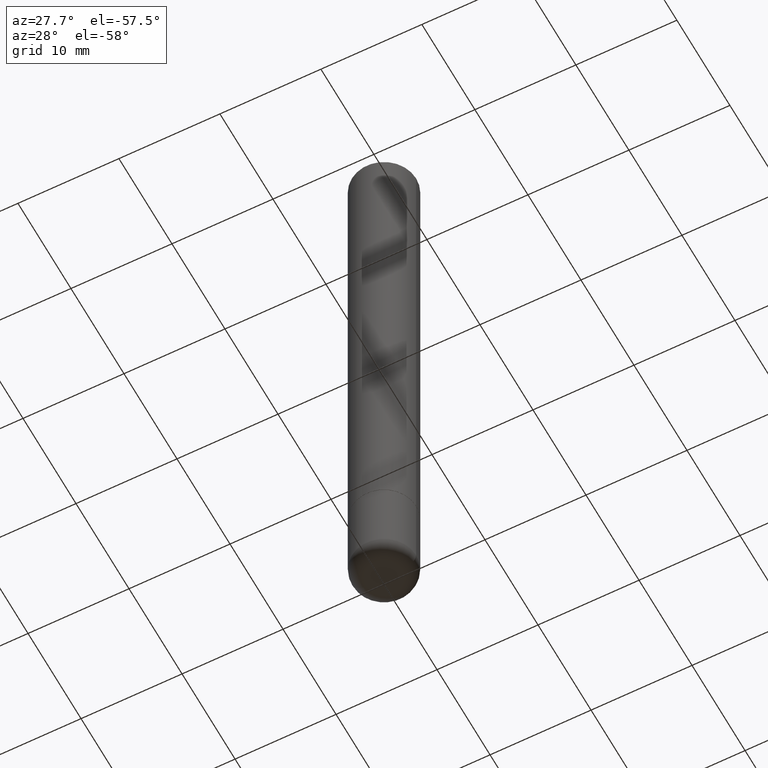
[diagram: clean part render]
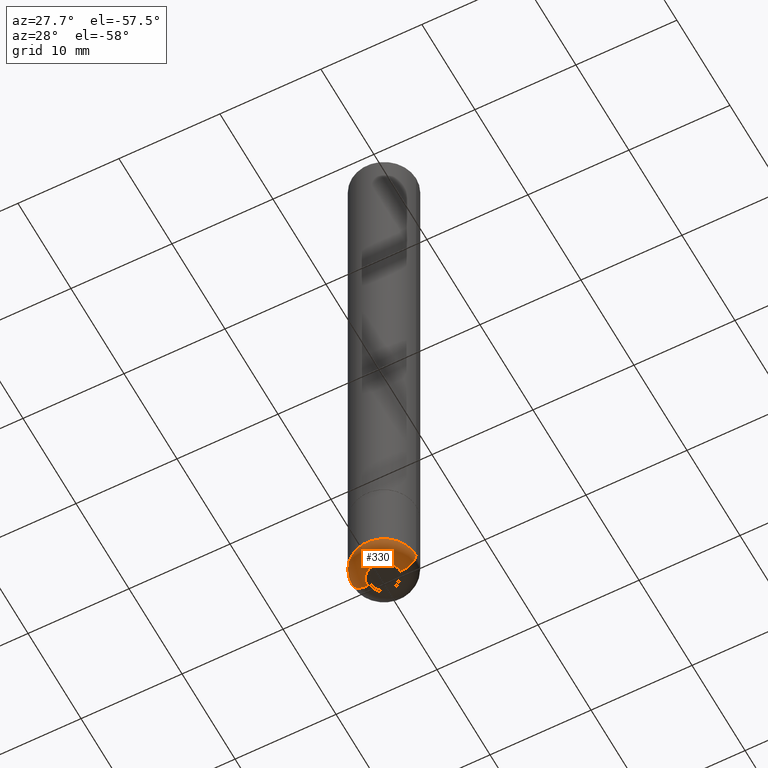
[diagram: same view with one face highlighted and labeled with its STEP entity id]
A machine part, auxiliary view. The second image highlights one B-rep face of the part: STEP entity #330.
In plain terms, the highlighted toroidal blend (fillet) surface has major radius 1.651 mm and minor (blend) radius 1.524 mm.
Its self-contained STEP definition (entity closure, byte-faithful):
#4 = AXIS2_PLACEMENT_3D ( 'NONE', #250, #470, #98 ) ;
#19 = EDGE_CURVE ( 'NONE', #147, #381, #78, .T. ) ;
#29 = ORIENTED_EDGE ( 'NONE', *, *, #224, .T. ) ;
#41 = CARTESIAN_POINT ( 'NONE',  ( -0.06447640787009809027, -7.950807469239815743E-15, -2.500000000000000000 ) ) ;
#58 = DIRECTION ( 'NONE',  ( -6.982962677686266711E-15, -1.000000000000000000, 3.491481338843145583E-15 ) ) ;
#62 = CARTESIAN_POINT ( 'NONE',  ( 0.06447640787009809027, -9.178939696856037528E-15, -2.500000000000000000 ) ) ;
#78 = CIRCLE ( 'NONE', #322, 0.05999999999999985206 ) ;
#92 = AXIS2_PLACEMENT_3D ( 'NONE', #287, #435, #106 ) ;
#98 = DIRECTION ( 'NONE',  ( 1.000000000000000000, -6.982962677686280121E-15, 0.000000000000000000 ) ) ;
#106 = DIRECTION ( 'NONE',  ( 1.000000000000000000, -6.982962677686268288E-15, 4.883557194083113462E-29 ) ) ;
#109 = VERTEX_POINT ( 'NONE', #288 ) ;
#122 = EDGE_CURVE ( 'NONE', #147, #346, #229, .T. ) ;
#136 = EDGE_LOOP ( 'NONE', ( #447, #383, #29, #285 ) ) ;
#137 = CARTESIAN_POINT ( 'NONE',  ( -0.1250000000000000278, -7.081131724556681111E-15, -2.440002284616149986 ) ) ;
#147 = VERTEX_POINT ( 'NONE', #41 ) ;
#153 = DIRECTION ( 'NONE',  ( 7.105427357601001859E-15, 1.000000000000000000, -3.491481338843145583E-15 ) ) ;
#168 = AXIS2_PLACEMENT_3D ( 'NONE', #200, #348, #319 ) ;
#172 = FACE_OUTER_BOUND ( 'NONE', #136, .T. ) ;
#183 = CIRCLE ( 'NONE', #221, 0.05999999999999985206 ) ;
#200 = CARTESIAN_POINT ( 'NONE',  ( 5.966949474049262823E-29, -8.519222443471929064E-15, -2.440002284616149986 ) ) ;
#203 = DIRECTION ( 'NONE',  ( 1.000000000000000000, -6.982962677686253300E-15, 0.000000000000000000 ) ) ;
#221 = AXIS2_PLACEMENT_3D ( 'NONE', #274, #58, #203 ) ;
#224 = EDGE_CURVE ( 'NONE', #346, #109, #183, .T. ) ;
#229 = CIRCLE ( 'NONE', #4, 0.06447640787009809027 ) ;
#246 = TOROIDAL_SURFACE ( 'NONE', #92, 0.06500000000000019651, 0.05999999999999985206 ) ;
#250 = CARTESIAN_POINT ( 'NONE',  ( 6.113672015462842613E-29, -8.728703347107864943E-15, -2.500000000000000000 ) ) ;
#267 = EDGE_CURVE ( 'NONE', #381, #109, #469, .T. ) ;
#274 = CARTESIAN_POINT ( 'NONE',  ( 0.06500000000000019651, -8.973115017521537346E-15, -2.440002284616149986 ) ) ;
#285 = ORIENTED_EDGE ( 'NONE', *, *, #267, .F. ) ;
#287 = CARTESIAN_POINT ( 'NONE',  ( 5.966949474049262823E-29, -8.519222443471929064E-15, -2.440002284616149986 ) ) ;
#288 = CARTESIAN_POINT ( 'NONE',  ( 0.1250000000000000278, -9.392092778182712402E-15, -2.440002284616149986 ) ) ;
#302 = DIRECTION ( 'NONE',  ( -1.000000000000000000, 7.105427357601008170E-15, 0.000000000000000000 ) ) ;
#319 = DIRECTION ( 'NONE',  ( 1.000000000000000000, -6.982962677686269077E-15, 0.000000000000000000 ) ) ;
#322 = AXIS2_PLACEMENT_3D ( 'NONE', #336, #153, #302 ) ;
#330 = ADVANCED_FACE ( 'NONE', ( #172 ), #246, .T. ) ;
#336 = CARTESIAN_POINT ( 'NONE',  ( -0.06500000000000019651, -8.057369665227862744E-15, -2.440002284616149986 ) ) ;
#346 = VERTEX_POINT ( 'NONE', #62 ) ;
#348 = DIRECTION ( 'NONE',  ( -2.445468806185136597E-29, 3.491481338843145583E-15, 1.000000000000000000 ) ) ;
#381 = VERTEX_POINT ( 'NONE', #137 ) ;
#383 = ORIENTED_EDGE ( 'NONE', *, *, #122, .T. ) ;
#435 = DIRECTION ( 'NONE',  ( -2.445468806185136597E-29, 3.491481338843145583E-15, 1.000000000000000000 ) ) ;
#447 = ORIENTED_EDGE ( 'NONE', *, *, #19, .F. ) ;
#469 = CIRCLE ( 'NONE', #168, 0.1250000000000000278 ) ;
#470 = DIRECTION ( 'NONE',  ( -2.445468806185136597E-29, 3.491481338843145583E-15, 1.000000000000000000 ) ) ;